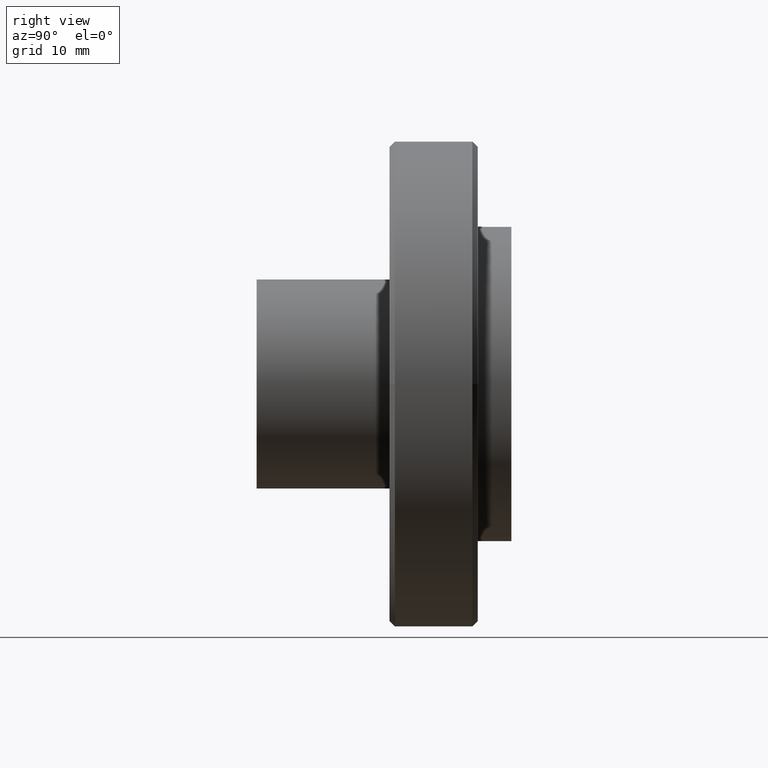
[diagram: clean part render]
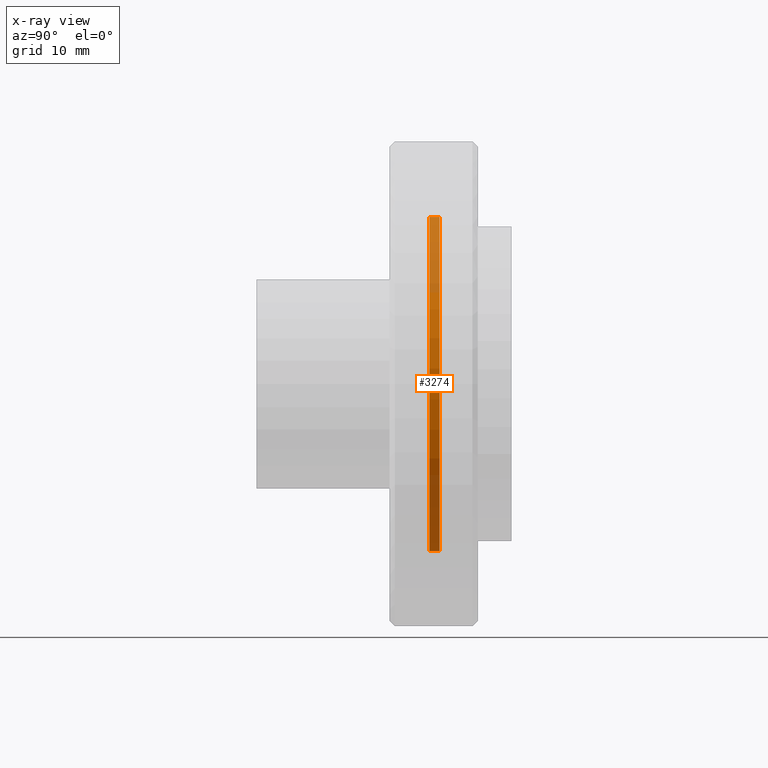
[diagram: x-ray — body ghosted, one internal face saturated and labeled with its STEP entity id]
A machine part, right view, then the same camera in x-ray: the body is ghosted and one INTERNAL B-rep face — a face not visible from any outside direction — is saturated and labeled: STEP entity #3274.
In plain terms, the highlighted cylindrical surface (partial cylindrical patch) has radius 24.0665 mm, axis along (0, -1, 0).
Its self-contained STEP definition (entity closure, byte-faithful):
#168 = AXIS2_PLACEMENT_3D ( 'NONE', #3774, #3772, #3770 ) ;
#179 = CARTESIAN_POINT ( 'NONE',  ( 2.073312870741672300E-034, -0.2166776695296667700, 0.9475000000000004500 ) ) ;
#188 = CARTESIAN_POINT ( 'NONE',  ( -1.168714487111488900E-019, -0.2740000000000033500, -0.9475000000000003400 ) ) ;
#320 = CARTESIAN_POINT ( 'NONE',  ( 1.160352842192117500E-016, -0.4490000000000030600, 0.9475000000000003400 ) ) ;
#328 = CARTESIAN_POINT ( 'NONE',  ( -1.551534133143913700E-019, -0.2166776695296669100, -3.103158678089148200E-017 ) ) ;
#329 = CARTESIAN_POINT ( 'NONE',  ( 5.784913143810470200E-037, -0.4490000000000033400, -0.9475000000000003400 ) ) ;
#334 = DIRECTION ( 'NONE',  ( 0.0000000000000000000, -1.441608439928370500E-016, -1.000000000000000000 ) ) ;
#341 = DIRECTION ( 'NONE',  ( 6.678368497779937400E-019, -1.000000000000000000, 1.335712616091103800E-016 ) ) ;
#345 = DIRECTION ( 'NONE',  ( 0.0000000000000000000, -1.441608439928370500E-016, -1.000000000000000000 ) ) ;
#348 = DIRECTION ( 'NONE',  ( 6.678368497779937400E-019, -1.000000000000000000, 1.335712616091103800E-016 ) ) ;
#349 = CARTESIAN_POINT ( 'NONE',  ( -1.168714487111488900E-019, -0.2740000000000031900, -2.337497078159431300E-017 ) ) ;
#350 = DIRECTION ( 'NONE',  ( 6.678368497779937400E-019, -1.000000000000000000, 1.335712616091103800E-016 ) ) ;
#351 = DIRECTION ( 'NONE',  ( 6.678368497779937400E-019, -1.000000000000000000, 1.335712616091103800E-016 ) ) ;
#574 = ORIENTED_EDGE ( 'NONE', *, *, #1073, .F. ) ;
#587 = ORIENTED_EDGE ( 'NONE', *, *, #1074, .F. ) ;
#590 = ORIENTED_EDGE ( 'NONE', *, *, #1076, .T. ) ;
#600 = ORIENTED_EDGE ( 'NONE', *, *, #1075, .T. ) ;
#1073 = EDGE_CURVE ( 'NONE', #1711, #1764, #3180, .T. ) ;
#1074 = EDGE_CURVE ( 'NONE', #1764, #1738, #3178, .T. ) ;
#1075 = EDGE_CURVE ( 'NONE', #1773, #1738, #3175, .T. ) ;
#1076 = EDGE_CURVE ( 'NONE', #1711, #1773, #3177, .T. ) ;
#1288 = AXIS2_PLACEMENT_3D ( 'NONE', #328, #341, #345 ) ;
#1292 = AXIS2_PLACEMENT_3D ( 'NONE', #349, #348, #334 ) ;
#1629 = EDGE_LOOP ( 'NONE', ( #590, #600, #587, #574 ) ) ;
#1711 = VERTEX_POINT ( 'NONE', #2033 ) ;
#1738 = VERTEX_POINT ( 'NONE', #2059 ) ;
#1764 = VERTEX_POINT ( 'NONE', #188 ) ;
#1773 = VERTEX_POINT ( 'NONE', #179 ) ;
#2033 = CARTESIAN_POINT ( 'NONE',  ( 1.175660927181459700E-016, -0.2166776695296670500, -0.9475000000000004500 ) ) ;
#2059 = CARTESIAN_POINT ( 'NONE',  ( 1.158992717881990000E-016, -0.2740000000000030700, 0.9475000000000003400 ) ) ;
#2684 = FACE_OUTER_BOUND ( 'NONE', #1629, .T. ) ;
#2690 = CYLINDRICAL_SURFACE ( 'NONE', #168, 0.9475000000000003400 ) ;
#3173 = VECTOR ( 'NONE', #351, 39.37007874015748100 ) ;
#3175 = LINE ( 'NONE', #320, #3173 ) ;
#3176 = VECTOR ( 'NONE', #350, 39.37007874015748100 ) ;
#3177 = CIRCLE ( 'NONE', #1288, 0.9475000000000003400 ) ;
#3178 = CIRCLE ( 'NONE', #1292, 0.9475000000000003400 ) ;
#3180 = LINE ( 'NONE', #329, #3176 ) ;
#3274 = ADVANCED_FACE ( 'NONE', ( #2684 ), #2690, .T. ) ;
#3770 = DIRECTION ( 'NONE',  ( 0.0000000000000000000, -1.441608439928370500E-016, -1.000000000000000000 ) ) ;
#3772 = DIRECTION ( 'NONE',  ( 6.678368497779937400E-019, -1.000000000000000000, 1.335712616091103800E-016 ) ) ;
#3774 = CARTESIAN_POINT ( 'NONE',  ( 5.784913143810470200E-037, -0.4490000000000031700, 4.294719517964893200E-034 ) ) ;